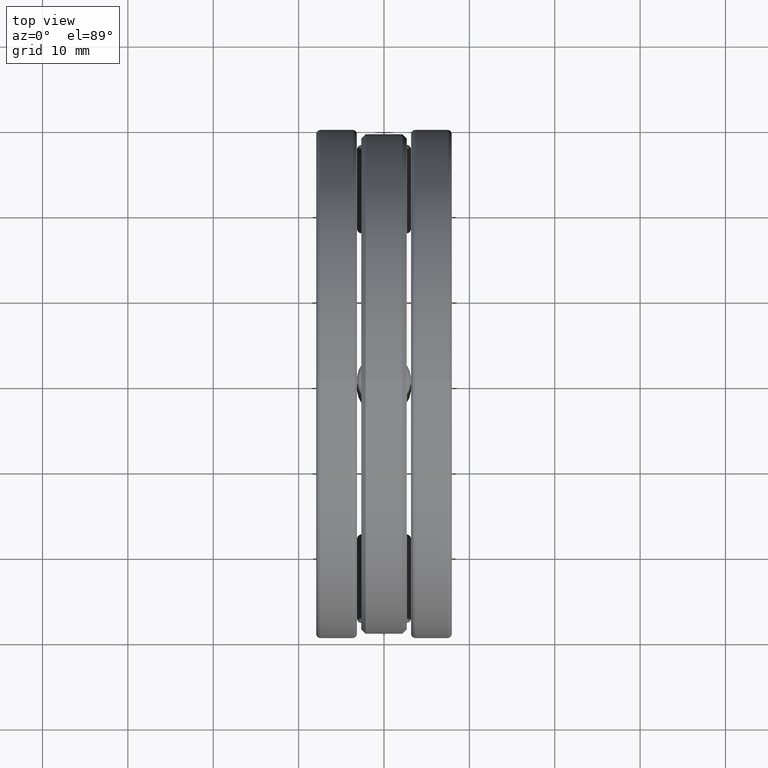
[diagram: clean part render]
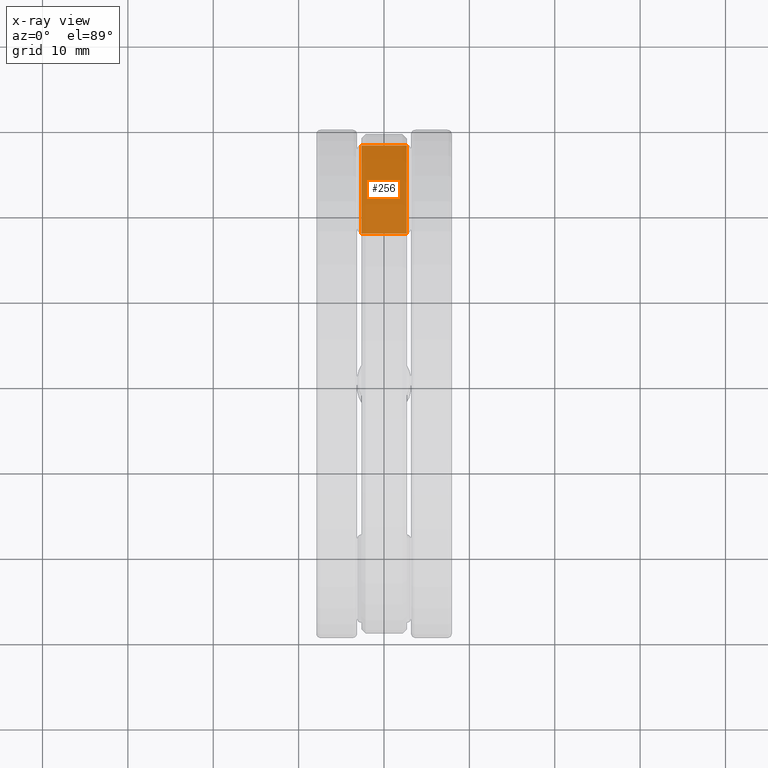
[diagram: x-ray — body ghosted, one internal face saturated and labeled with its STEP entity id]
A machine part, top view, then the same camera in x-ray: the body is ghosted and one INTERNAL B-rep face — a face not visible from any outside direction — is saturated and labeled: STEP entity #256.
In plain terms, the highlighted planar face has unit normal (0, 0, -1).
Its self-contained STEP definition (entity closure, byte-faithful):
#9 = AXIS2_PLACEMENT_3D ( 'NONE', #488, #47, #1404 ) ;
#38 = VECTOR ( 'NONE', #1188, 39.37007874015748100 ) ;
#47 = DIRECTION ( 'NONE',  ( 0.0000000000000000000, 8.392774174083757800E-017, -1.000000000000000000 ) ) ;
#116 = VERTEX_POINT ( 'NONE', #1302 ) ;
#122 = EDGE_CURVE ( 'NONE', #463, #645, #826, .T. ) ;
#138 = CARTESIAN_POINT ( 'NONE',  ( -0.3125000000000000600, 1.101875000000000200, -0.1249999999999999900 ) ) ;
#183 = VECTOR ( 'NONE', #1015, 39.37007874015748100 ) ;
#234 = LINE ( 'NONE', #386, #619 ) ;
#256 = ADVANCED_FACE ( 'NONE', ( #911 ), #482, .F. ) ;
#293 = EDGE_LOOP ( 'NONE', ( #808, #964, #1129, #1314 ) ) ;
#322 = EDGE_CURVE ( 'NONE', #116, #463, #234, .T. ) ;
#330 = DIRECTION ( 'NONE',  ( -0.0000000000000000000, 1.000000000000000000, 8.392774174083757800E-017 ) ) ;
#365 = VECTOR ( 'NONE', #330, 39.37007874015748100 ) ;
#372 = VERTEX_POINT ( 'NONE', #875 ) ;
#386 = CARTESIAN_POINT ( 'NONE',  ( -0.1049999999999999700, -1.028873219533752900E-018, -0.1250000000000000600 ) ) ;
#463 = VERTEX_POINT ( 'NONE', #869 ) ;
#482 = PLANE ( 'NONE',  #9 ) ;
#488 = CARTESIAN_POINT ( 'NONE',  ( -0.3125000000000000600, 0.6950000000000000600, -0.1250000000000000300 ) ) ;
#501 = DIRECTION ( 'NONE',  ( -0.0000000000000000000, 1.000000000000000000, 8.392774174083757800E-017 ) ) ;
#611 = LINE ( 'NONE', #1229, #183 ) ;
#619 = VECTOR ( 'NONE', #501, 39.37007874015748100 ) ;
#645 = VERTEX_POINT ( 'NONE', #1362 ) ;
#808 = ORIENTED_EDGE ( 'NONE', *, *, #1392, .T. ) ;
#826 = LINE ( 'NONE', #138, #38 ) ;
#869 = CARTESIAN_POINT ( 'NONE',  ( -0.1049999999999999700, 1.101875000000000200, -0.1249999999999999900 ) ) ;
#875 = CARTESIAN_POINT ( 'NONE',  ( 0.1050000000000000400, 0.6950000000000000600, -0.1250000000000000300 ) ) ;
#911 = FACE_OUTER_BOUND ( 'NONE', #293, .T. ) ;
#964 = ORIENTED_EDGE ( 'NONE', *, *, #122, .F. ) ;
#971 = LINE ( 'NONE', #1011, #365 ) ;
#1011 = CARTESIAN_POINT ( 'NONE',  ( 0.1050000000000000200, 2.585075563378934300E-017, -0.1250000000000000600 ) ) ;
#1015 = DIRECTION ( 'NONE',  ( 1.000000000000000000, -0.0000000000000000000, -0.0000000000000000000 ) ) ;
#1129 = ORIENTED_EDGE ( 'NONE', *, *, #322, .F. ) ;
#1188 = DIRECTION ( 'NONE',  ( 1.000000000000000000, -0.0000000000000000000, -0.0000000000000000000 ) ) ;
#1229 = CARTESIAN_POINT ( 'NONE',  ( -0.3125000000000000600, 0.6950000000000000600, -0.1250000000000000300 ) ) ;
#1302 = CARTESIAN_POINT ( 'NONE',  ( -0.1049999999999999700, 0.6950000000000000600, -0.1250000000000000300 ) ) ;
#1314 = ORIENTED_EDGE ( 'NONE', *, *, #1470, .T. ) ;
#1362 = CARTESIAN_POINT ( 'NONE',  ( 0.1050000000000000400, 1.101875000000000200, -0.1249999999999999900 ) ) ;
#1392 = EDGE_CURVE ( 'NONE', #372, #645, #971, .T. ) ;
#1404 = DIRECTION ( 'NONE',  ( 0.0000000000000000000, 1.000000000000000000, 8.392774174083757800E-017 ) ) ;
#1470 = EDGE_CURVE ( 'NONE', #116, #372, #611, .T. ) ;